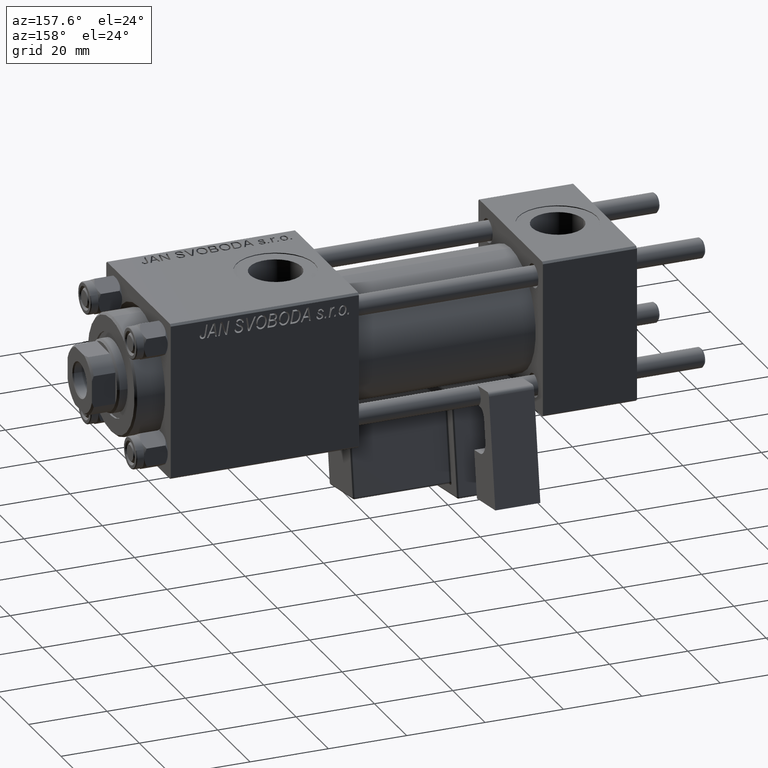
[diagram: clean part render]
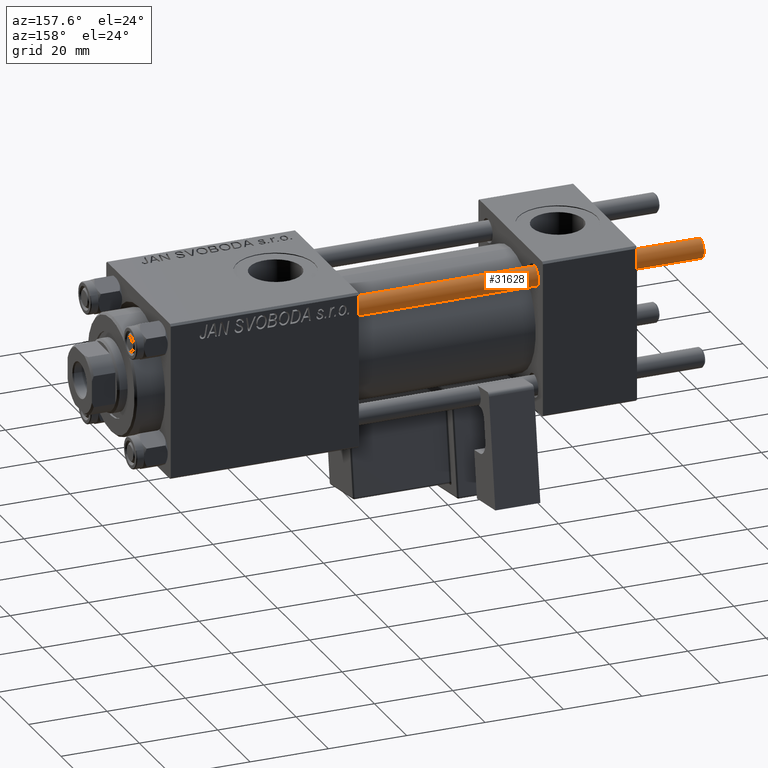
[diagram: same view with one face highlighted and labeled with its STEP entity id]
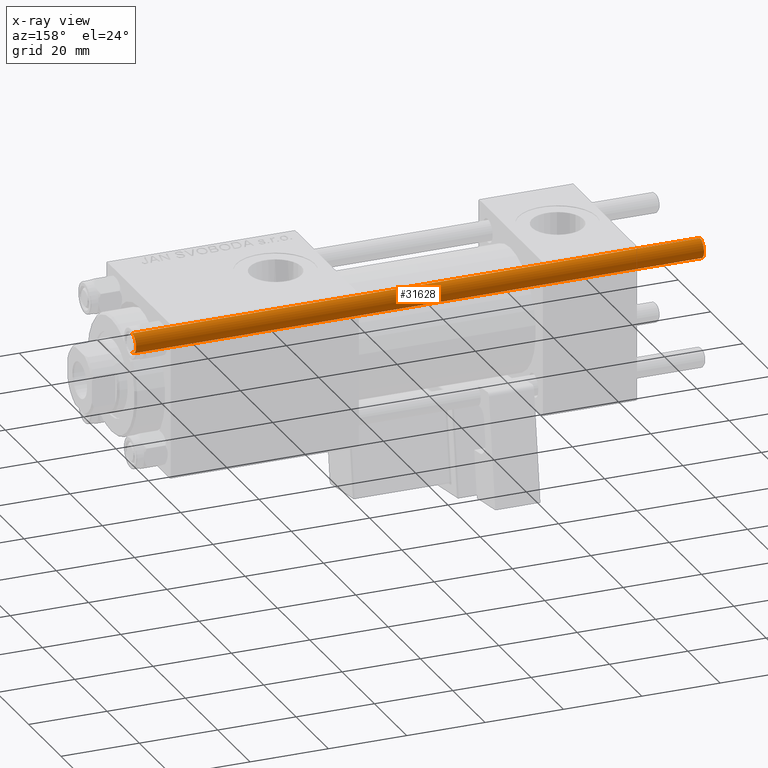
[diagram: x-ray of the same camera — body ghosted, the highlighted face saturated]
A machine part, auxiliary view. The second image highlights one B-rep face of the part: STEP entity #31628.
The next image is the same camera in x-ray: the body ghosted, the highlighted face saturated — about 0% of this face is hidden behind the body in this view.
In plain terms, the highlighted cylindrical surface (edge-blend (fillet) strip) has radius 2.5 mm, axis along (-1, -0, -0).
Its self-contained STEP definition (entity closure, byte-faithful):
#298 = AXIS2_PLACEMENT_3D ( 'NONE', #51868, #23998, #7736 ) ;
#1493 = EDGE_LOOP ( 'NONE', ( #17328, #28304, #19261, #43373 ) ) ;
#1915 = AXIS2_PLACEMENT_3D ( 'NONE', #34956, #47563, #27332 ) ;
#2614 = DIRECTION ( 'NONE',  ( -0.000000000000000000, -0.000000000000000000, -1.000000000000000000 ) ) ;
#3391 = LINE ( 'NONE', #11008, #19238 ) ;
#4725 = EDGE_CURVE ( 'NONE', #24846, #22278, #49291, .T. ) ;
#6909 = AXIS2_PLACEMENT_3D ( 'NONE', #49279, #29297, #50073 ) ;
#7736 = DIRECTION ( 'NONE',  ( -1.000000000000000000, 0.000000000000000000, 0.000000000000000000 ) ) ;
#9029 = CARTESIAN_POINT ( 'NONE',  ( 2.500000000000000000, 3.061616997868383141E-16, 145.5000000000000284 ) ) ;
#9340 = CARTESIAN_POINT ( 'NONE',  ( -2.500000000000000000, 0.000000000000000000, 145.5000000000000284 ) ) ;
#11008 = CARTESIAN_POINT ( 'NONE',  ( -2.500000000000000000, 0.000000000000000000, 146.0000000000000000 ) ) ;
#11927 = CIRCLE ( 'NONE', #6909, 2.500000000000000000 ) ;
#16194 = EDGE_CURVE ( 'NONE', #23982, #18428, #3391, .T. ) ;
#16972 = DIRECTION ( 'NONE',  ( -0.000000000000000000, -0.000000000000000000, -1.000000000000000000 ) ) ;
#17328 = ORIENTED_EDGE ( 'NONE', *, *, #27485, .T. ) ;
#18428 = VERTEX_POINT ( 'NONE', #25122 ) ;
#19238 = VECTOR ( 'NONE', #2614, 1000.000000000000000 ) ;
#19261 = ORIENTED_EDGE ( 'NONE', *, *, #25737, .T. ) ;
#21492 = FACE_OUTER_BOUND ( 'NONE', #1493, .T. ) ;
#22278 = VERTEX_POINT ( 'NONE', #34448 ) ;
#23982 = VERTEX_POINT ( 'NONE', #9340 ) ;
#23998 = DIRECTION ( 'NONE',  ( -0.000000000000000000, -0.000000000000000000, -1.000000000000000000 ) ) ;
#24846 = VERTEX_POINT ( 'NONE', #9029 ) ;
#25122 = CARTESIAN_POINT ( 'NONE',  ( -2.500000000000000000, 0.000000000000000000, 0.5000000000000559552 ) ) ;
#25737 = EDGE_CURVE ( 'NONE', #22278, #18428, #11927, .T. ) ;
#27332 = DIRECTION ( 'NONE',  ( 1.000000000000000000, 0.000000000000000000, 0.000000000000000000 ) ) ;
#27485 = EDGE_CURVE ( 'NONE', #23982, #24846, #49783, .T. ) ;
#28304 = ORIENTED_EDGE ( 'NONE', *, *, #4725, .T. ) ;
#29297 = DIRECTION ( 'NONE',  ( -0.000000000000000000, -0.000000000000000000, 1.000000000000000000 ) ) ;
#31628 = ADVANCED_FACE ( 'NONE', ( #21492 ), #35837, .T. ) ;
#34448 = CARTESIAN_POINT ( 'NONE',  ( 2.500000000000000000, 3.061616997868383141E-16, 0.5000000000000559552 ) ) ;
#34956 = CARTESIAN_POINT ( 'NONE',  ( 0.000000000000000000, 0.000000000000000000, 145.5000000000000284 ) ) ;
#35837 = CYLINDRICAL_SURFACE ( 'NONE', #298, 2.500000000000000000 ) ;
#39502 = VECTOR ( 'NONE', #16972, 1000.000000000000000 ) ;
#40900 = CARTESIAN_POINT ( 'NONE',  ( 2.500000000000000000, 3.061616997868383141E-16, 146.0000000000000000 ) ) ;
#43373 = ORIENTED_EDGE ( 'NONE', *, *, #16194, .F. ) ;
#47563 = DIRECTION ( 'NONE',  ( 0.000000000000000000, 0.000000000000000000, -1.000000000000000000 ) ) ;
#49279 = CARTESIAN_POINT ( 'NONE',  ( 0.000000000000000000, 0.000000000000000000, 0.5000000000000559552 ) ) ;
#49291 = LINE ( 'NONE', #40900, #39502 ) ;
#49783 = CIRCLE ( 'NONE', #1915, 2.500000000000000000 ) ;
#50073 = DIRECTION ( 'NONE',  ( 1.000000000000000000, 0.000000000000000000, 0.000000000000000000 ) ) ;
#51868 = CARTESIAN_POINT ( 'NONE',  ( 0.000000000000000000, 0.000000000000000000, 146.0000000000000000 ) ) ;